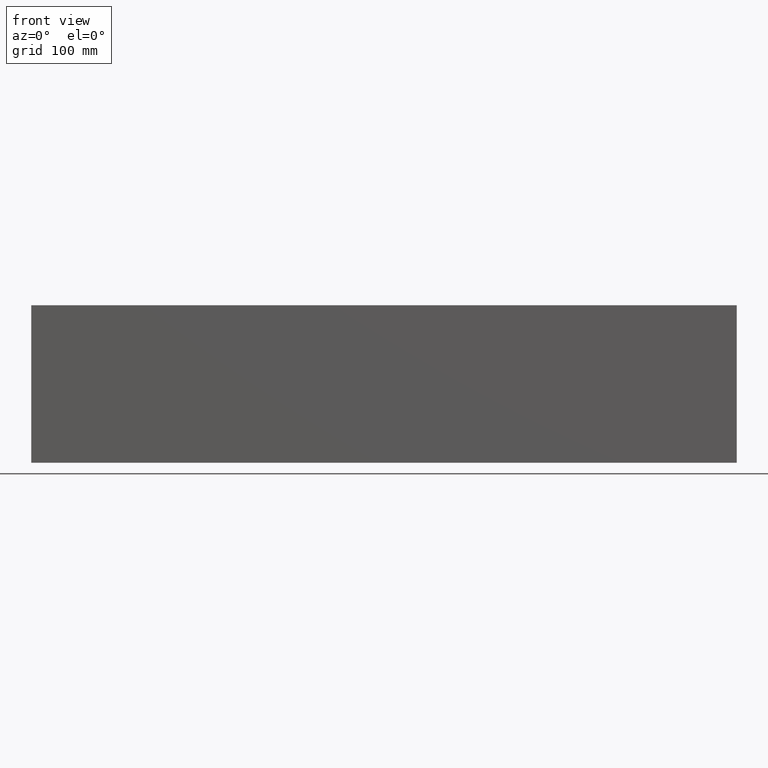
[diagram: clean part render]
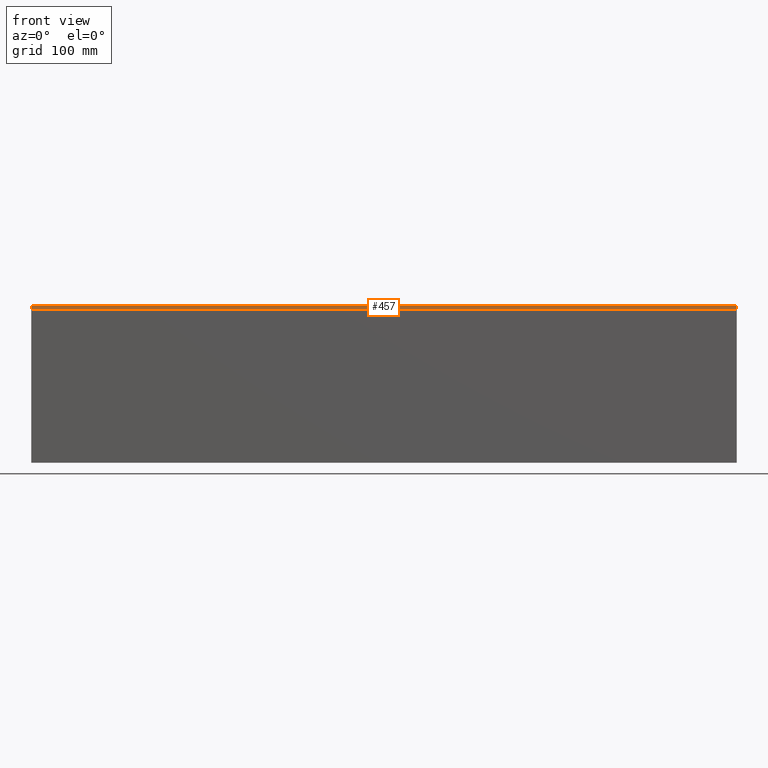
[diagram: same view with one face highlighted and labeled with its STEP entity id]
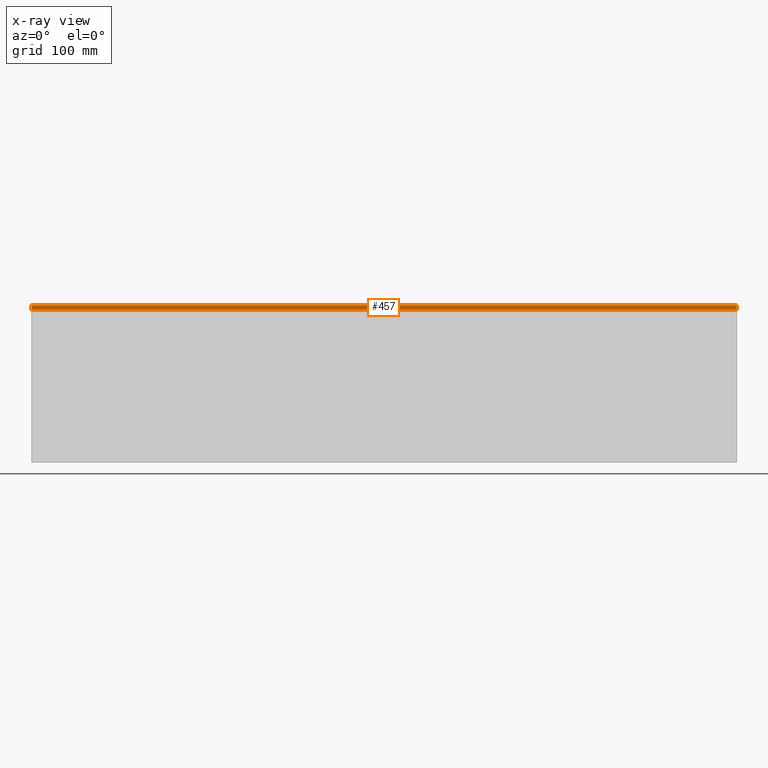
[diagram: x-ray of the same camera — body ghosted, the highlighted face saturated]
A machine part, front view. The second image highlights one B-rep face of the part: STEP entity #457.
The next image is the same camera in x-ray: the body ghosted, the highlighted face saturated — about 0% of this face is hidden behind the body in this view.
In plain terms, the highlighted planar face has unit normal (-0, 1, 0).
Its self-contained STEP definition (entity closure, byte-faithful):
#16 = DIRECTION ( 'NONE',  ( 0.0000000000000000000, -0.0000000000000000000, 1.000000000000000000 ) ) ;
#17 = DIRECTION ( 'NONE',  ( -0.0000000000000000000, 1.000000000000000000, 0.0000000000000000000 ) ) ;
#19 = CARTESIAN_POINT ( 'NONE',  ( 650.0000000000000000, 7.999999999999983125, 145.0000000000000000 ) ) ;
#22 = PLANE ( 'NONE',  #412 ) ;
#24 = FACE_OUTER_BOUND ( 'NONE', #570, .T. ) ;
#105 = DIRECTION ( 'NONE',  ( -1.000000000000000000, -0.0000000000000000000, -0.0000000000000000000 ) ) ;
#108 = CARTESIAN_POINT ( 'NONE',  ( 650.0000000000000000, 7.999999999999983125, 145.0000000000000000 ) ) ;
#109 = LINE ( 'NONE', #108, #640 ) ;
#153 = DIRECTION ( 'NONE',  ( -1.000000000000000000, -0.0000000000000000000, -0.0000000000000000000 ) ) ;
#154 = CARTESIAN_POINT ( 'NONE',  ( 650.0000000000000000, 7.999999999999983125, 141.0000000000000000 ) ) ;
#155 = LINE ( 'NONE', #154, #1226 ) ;
#198 = VECTOR ( 'NONE', #1169, 1000.000000000000000 ) ;
#354 = EDGE_CURVE ( 'NONE', #1453, #770, #155, .T. ) ;
#384 = EDGE_CURVE ( 'NONE', #683, #597, #109, .T. ) ;
#412 = AXIS2_PLACEMENT_3D ( 'NONE', #19, #17, #16 ) ;
#457 = ADVANCED_FACE ( 'NONE', ( #24 ), #22, .F. ) ;
#570 = EDGE_LOOP ( 'NONE', ( #1396, #1508, #1553, #1435 ) ) ;
#597 = VERTEX_POINT ( 'NONE', #1457 ) ;
#640 = VECTOR ( 'NONE', #105, 1000.000000000000000 ) ;
#683 = VERTEX_POINT ( 'NONE', #1254 ) ;
#743 = EDGE_CURVE ( 'NONE', #683, #1453, #1174, .T. ) ;
#750 = CARTESIAN_POINT ( 'NONE',  ( 650.0000000000000000, 7.999999999999983125, 141.0000000000000000 ) ) ;
#770 = VERTEX_POINT ( 'NONE', #1138 ) ;
#941 = DIRECTION ( 'NONE',  ( 0.0000000000000000000, 0.0000000000000000000, -1.000000000000000000 ) ) ;
#942 = CARTESIAN_POINT ( 'NONE',  ( 0.0000000000000000000, 7.999999999999983125, 145.0000000000000000 ) ) ;
#943 = LINE ( 'NONE', #942, #1102 ) ;
#1018 = EDGE_CURVE ( 'NONE', #597, #770, #943, .T. ) ;
#1102 = VECTOR ( 'NONE', #941, 1000.000000000000000 ) ;
#1138 = CARTESIAN_POINT ( 'NONE',  ( 0.0000000000000000000, 7.999999999999983125, 141.0000000000000000 ) ) ;
#1169 = DIRECTION ( 'NONE',  ( 0.0000000000000000000, 0.0000000000000000000, -1.000000000000000000 ) ) ;
#1172 = CARTESIAN_POINT ( 'NONE',  ( 650.0000000000000000, 7.999999999999983125, 145.0000000000000000 ) ) ;
#1174 = LINE ( 'NONE', #1172, #198 ) ;
#1226 = VECTOR ( 'NONE', #153, 1000.000000000000000 ) ;
#1254 = CARTESIAN_POINT ( 'NONE',  ( 650.0000000000000000, 7.999999999999983125, 145.0000000000000000 ) ) ;
#1396 = ORIENTED_EDGE ( 'NONE', *, *, #1018, .T. ) ;
#1435 = ORIENTED_EDGE ( 'NONE', *, *, #384, .T. ) ;
#1453 = VERTEX_POINT ( 'NONE', #750 ) ;
#1457 = CARTESIAN_POINT ( 'NONE',  ( 0.0000000000000000000, 7.999999999999983125, 145.0000000000000000 ) ) ;
#1508 = ORIENTED_EDGE ( 'NONE', *, *, #354, .F. ) ;
#1553 = ORIENTED_EDGE ( 'NONE', *, *, #743, .F. ) ;